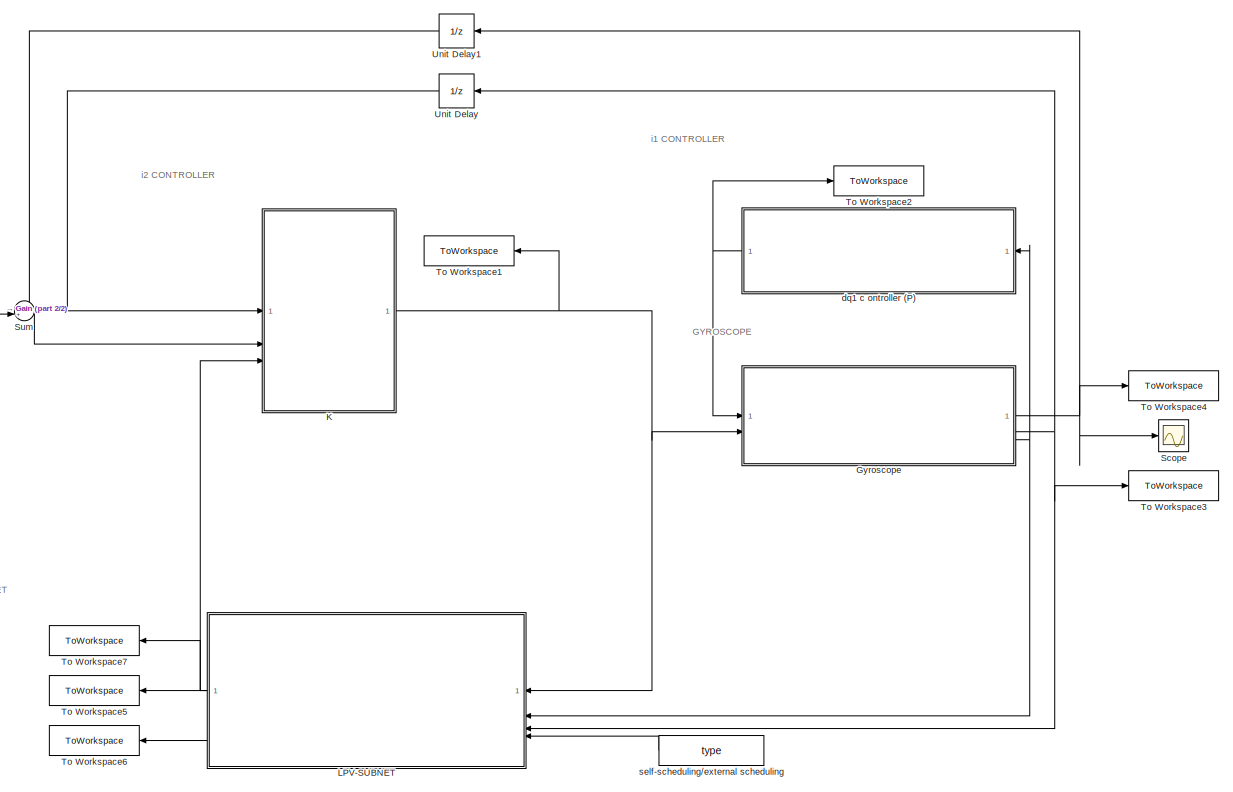
[diagram: root canvas - part 1/2, most of the canvas]
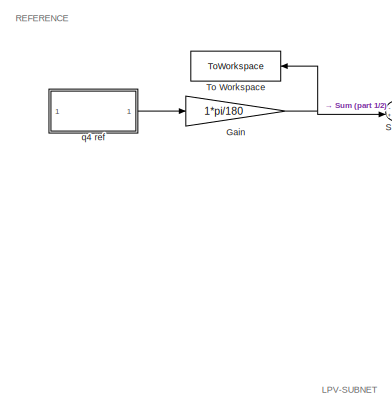
[diagram: root canvas - part 2/2, middle left region]
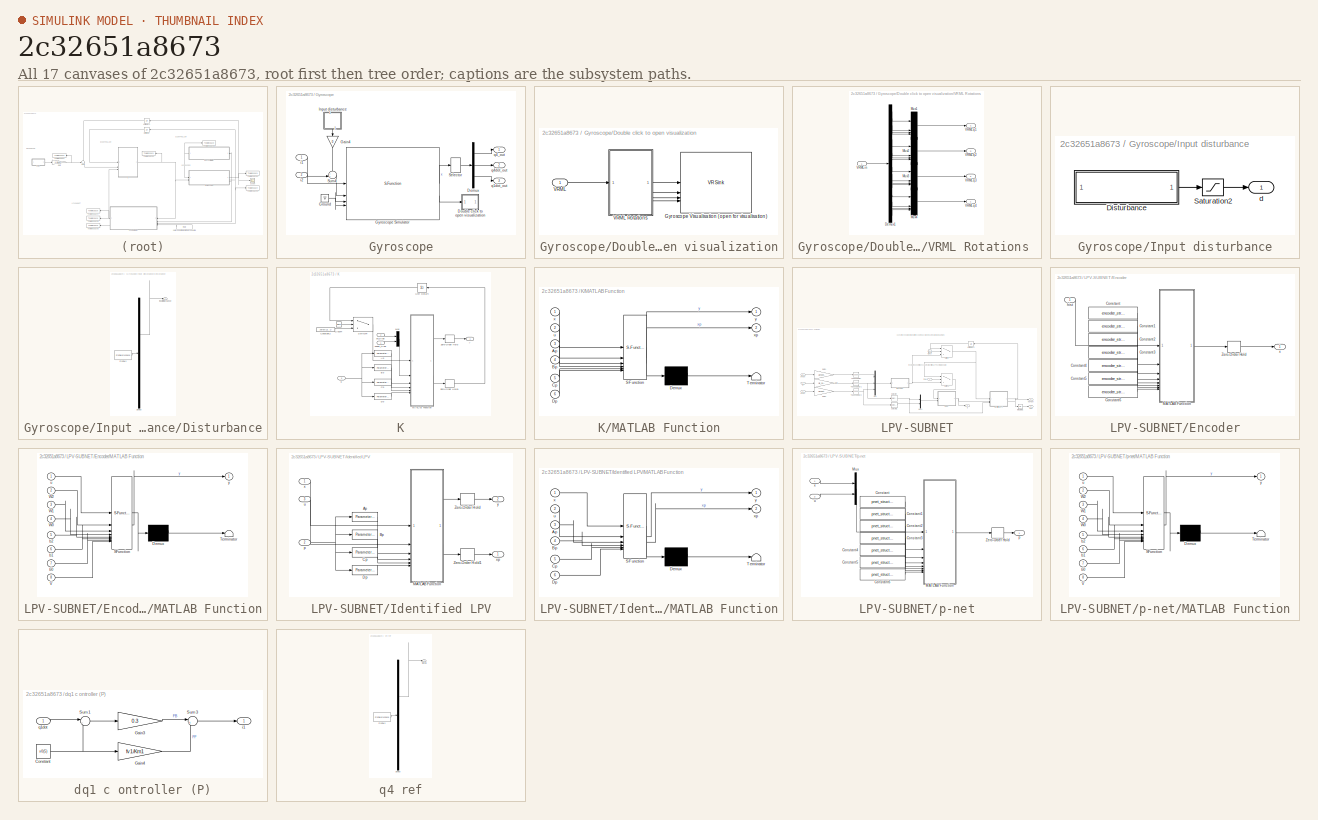
[diagram: thumbnail index - all 17 canvases of the model, root first then tree order]
MODEL slx_2c32651a8673
KIND model
CONFIG AbsTol = 1e-6
CONFIG EnableMultiTasking = off
CONFIG FixedStep = auto
CONFIG MaxStep = auto
CONFIG MinStep = auto
CONFIG RelTol = 1e-6
CONFIG SampleTimeConstraint = Unconstrained
CONFIG SolverName = VariableStepAuto
CONFIG StartTime = 0.0
CONFIG StopTime = 100
BLOCK [Gain] Gain
  Gain = 1*pi/180
BLOCK [SubSystem] Gyroscope
BLOCK [Demux] Gyroscope/Demux
  Outputs = 3
BLOCK [SubSystem] Gyroscope/Double click to open visualization
  Commented = on
  OpenFcn = open_system([strcat(gcb),'/Gyroscope Visualisation (open for visualisation)'],'OpenFcn')
BLOCK [Reference] Gyroscope/Double click to open visualization/Gyroscope Visualisation (open for visualisation)  REF=vrlib/VR Sink
  InstantiateOnLoad = on
  SourceBlock = vrlib/VR Sink
  SourceType = Virtual Reality Sink
BLOCK [Inport] Gyroscope/Double click to open visualization/VRML
BLOCK [SubSystem] Gyroscope/Double click to open visualization/VRML Rotations 
BLOCK [Demux] Gyroscope/Double click to open visualization/VRML Rotations /Demux1
  Outputs = 16
BLOCK [Mux] Gyroscope/Double click to open visualization/VRML Rotations /Mux1
  DisplayOption = bar
BLOCK [Mux] Gyroscope/Double click to open visualization/VRML Rotations /Mux2
  DisplayOption = bar
BLOCK [Mux] Gyroscope/Double click to open visualization/VRML Rotations /Mux3
  DisplayOption = bar
BLOCK [Mux] Gyroscope/Double click to open visualization/VRML Rotations /Mux4
  DisplayOption = bar
BLOCK [Inport] Gyroscope/Double click to open visualization/VRML Rotations /VRMLin
BLOCK [Outport] Gyroscope/Double click to open visualization/VRML Rotations /VRMLq1
  Port = 4
BLOCK [Outport] Gyroscope/Double click to open visualization/VRML Rotations /VRMLq2
  Port = 3
BLOCK [Outport] Gyroscope/Double click to open visualization/VRML Rotations /VRMLq3
  Port = 2
BLOCK [Outport] Gyroscope/Double click to open visualization/VRML Rotations /VRMLq4
BLOCK [Gain] Gyroscope/Gain4
  Gain = 0
  NameLocation = left
BLOCK [Ground] Gyroscope/Ground
BLOCK [S-Function] Gyroscope/Gyroscope Simulator
  EnableBusSupport = off
  FunctionName = gyro_simulation
  Parameters = x0,f,w1l,q2l,q3l,q4l,inertia,Km
  SFcnIsStateOwnerBlock = off
  SFunctionDeploymentMode = off
BLOCK [SubSystem] Gyroscope/Input disturbance
  NameLocation = left
BLOCK [SubSystem] Gyroscope/Input disturbance/Disturbance
  ClipboardFcn = sigbuilder_block('clipboard');
  CloseFcn = sigbuilder_block('close');
  ContinueFcn = sigbuilder_block('continue');
  CopyFcn = sigbuilder_block('copy');
  DeleteFcn = sigbuilder_block('delete');
  LoadFcn = sigbuilder_block('load');
  MaskHideContents = on
  ModelCloseFcn = sigbuilder_block('modelClose');
  NameChangeFcn = sigbuilder_block('namechange');
  OpenFcn = sigbuilder_block('open',[517.5 223.5 557.25 363 ]);
  PauseFcn = sigbuilder_block('pause');
  PreSaveFcn = sigbuilder_block('preSave');
  StartFcn = sigbuilder_block('start');
  StopFcn = sigbuilder_block('stop');
  Tag = STV Subsys
BLOCK [Demux] Gyroscope/Input disturbance/Disturbance/Demux
  DisplayOption = none
  Outputs = 1
  Tag = STV Demux
BLOCK [FromWorkspace] Gyroscope/Input disturbance/Disturbance/FromWs
  Tag = STV FromWs
  VariableName = tuvar
BLOCK [Outport] Gyroscope/Input disturbance/Disturbance/InputDisturbance
  Tag = STV Outport
BLOCK [Saturate] Gyroscope/Input disturbance/Saturation2
  LowerLimit = -0.1
  UpperLimit = 0.1
BLOCK [Outport] Gyroscope/Input disturbance/d
BLOCK [Selector] Gyroscope/Selector
  IndexOptions = Index vector (dialog)
  Indices = [4 8 5]
  InputPortWidth = 8
  OutputSizes = 1
BLOCK [Sum] Gyroscope/Sum4
  Inputs = ++|
BLOCK [Inport] Gyroscope/i1
BLOCK [Inport] Gyroscope/i2
  Port = 2
BLOCK [Outport] Gyroscope/q1dot_out
  Port = 3
BLOCK [Outport] Gyroscope/q4_out
BLOCK [Outport] Gyroscope/q4dot_out
  Port = 2
BLOCK [SubSystem] K
BLOCK [Reference] K/Ap  REF=lpvcoreLibraryCore/Parameter-Varying
Matrix
  SourceBlock = lpvcoreLibraryCore/Parameter-Varying\nMatrix
  SourceProductName = LPVcore
  SourceType = Parameter-Varying Matrix
BLOCK [Reference] K/Bp  REF=lpvcoreLibraryCore/Parameter-Varying
Matrix
  SourceBlock = lpvcoreLibraryCore/Parameter-Varying\nMatrix
  SourceProductName = LPVcore
  SourceType = Parameter-Varying Matrix
BLOCK [Clock] K/Clock4
BLOCK [Constant] K/Constant2
  Value = zeros(13, 1)
BLOCK [Reference] K/Cp  REF=lpvcoreLibraryCore/Parameter-Varying
Matrix
  SourceBlock = lpvcoreLibraryCore/Parameter-Varying\nMatrix
  SourceProductName = LPVcore
  SourceType = Parameter-Varying Matrix
BLOCK [Reference] K/Dp  REF=lpvcoreLibraryCore/Parameter-Varying
Matrix
  SourceBlock = lpvcoreLibraryCore/Parameter-Varying\nMatrix
  SourceProductName = LPVcore
  SourceType = Parameter-Varying Matrix
BLOCK [SubSystem] K/MATLAB Function
  ErrorFcn = Stateflow.Translate.translate
  PermitHierarchicalResolution = ExplicitOnly
  SFBlockType = MATLAB Function
  TreatAsAtomicUnit = on
BLOCK [Demux] K/MATLAB Function/ Demux 
  Outputs = 1
BLOCK [S-Function] K/MATLAB Function/ SFunction 
  EnableBusSupport = on
  FunctionName = sf_sfun
  PortCounts = [6 3]
  SFcnIsStateOwnerBlock = off
  SFunctionDeploymentMode = off
  Tag = Stateflow S-Function 5
BLOCK [Terminator] K/MATLAB Function/ Terminator 
BLOCK [Inport] K/MATLAB Function/Ap
  Port = 3
BLOCK [Inport] K/MATLAB Function/Bp
  Port = 4
BLOCK [Inport] K/MATLAB Function/Cp
  Port = 5
BLOCK [Inport] K/MATLAB Function/Dp
  Port = 6
BLOCK [Inport] K/MATLAB Function/u
  Port = 2
BLOCK [Inport] K/MATLAB Function/x
BLOCK [Outport] K/MATLAB Function/xp
  Port = 2
BLOCK [Outport] K/MATLAB Function/y
BLOCK [Mux] K/Mux
  DisplayOption = bar
  Inputs = 2
BLOCK [Switch] K/Switch4
  Criteria = u2 > Threshold
  InputSameDT = off
  SaturateOnIntegerOverflow = off
  Threshold = Ts
BLOCK [UnitDelay] K/Unit Delay4
  HasFrameUpgradeWarning = on
  NameLocation = top
  SampleTime = Ts
BLOCK [ZeroOrderHold] K/Zero-Order Hold
  SampleTime = Ts
BLOCK [ZeroOrderHold] K/Zero-Order Hold1
  SampleTime = Ts
BLOCK [Inport] K/p
  Port = 3
BLOCK [Inport] K/q4_tilde
  Port = 2
BLOCK [Inport] K/q4dot_tilde
BLOCK [Outport] K/y
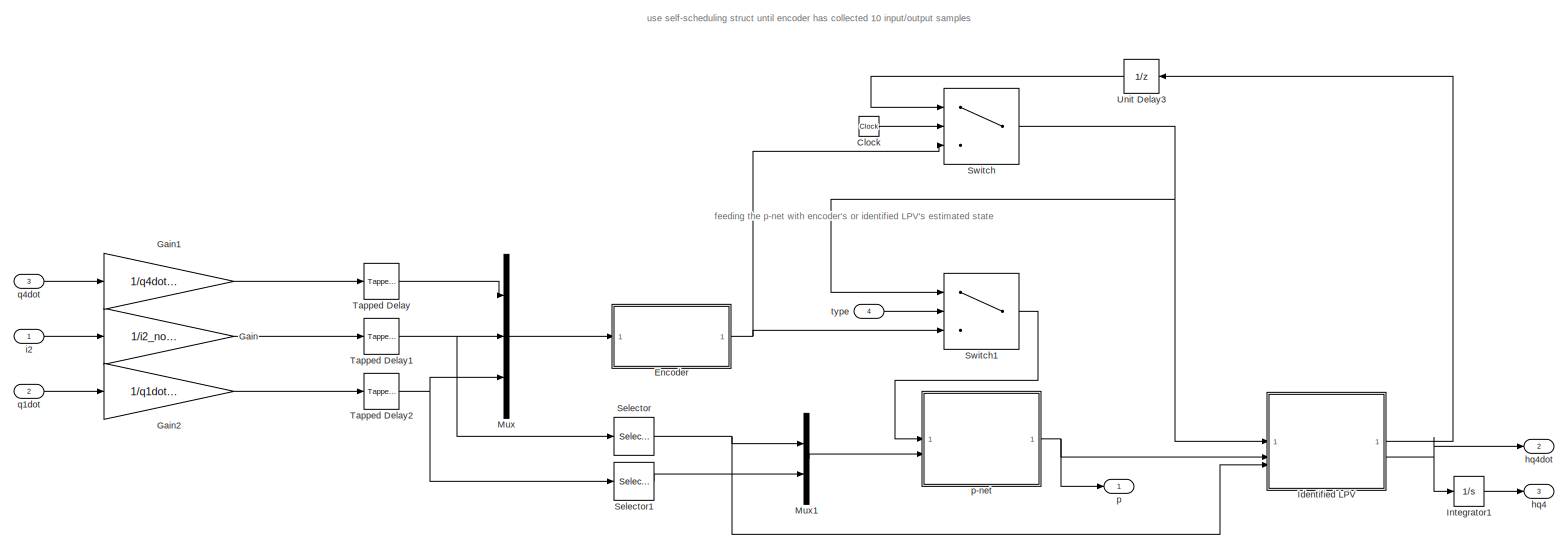
[diagram: LPV-SUBNET - part 1/1, most of the canvas]
BLOCK [SubSystem] LPV-SUBNET
  NameLocation = top
BLOCK [Clock] LPV-SUBNET/Clock
BLOCK [SubSystem] LPV-SUBNET/Encoder
BLOCK [Constant] LPV-SUBNET/Encoder/Constant
  Value = encoder_struct.W2
BLOCK [Constant] LPV-SUBNET/Encoder/Constant1
  Value = encoder_struct.W1
BLOCK [Constant] LPV-SUBNET/Encoder/Constant2
  Value = encoder_struct.W0
BLOCK [Constant] LPV-SUBNET/Encoder/Constant3
  Value = encoder_struct.b2
BLOCK [Constant] LPV-SUBNET/Encoder/Constant4
  Value = encoder_struct.b1
BLOCK [Constant] LPV-SUBNET/Encoder/Constant5
  Value = encoder_struct.b0
BLOCK [Constant] LPV-SUBNET/Encoder/Constant6
  Value = encoder_struct.V
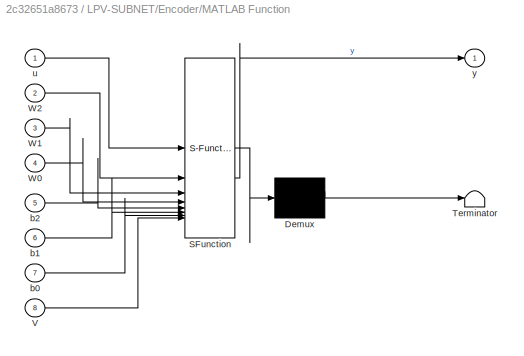
BLOCK [SubSystem] LPV-SUBNET/Encoder/MATLAB Function
  ErrorFcn = Stateflow.Translate.translate
  PermitHierarchicalResolution = ExplicitOnly
  SFBlockType = MATLAB Function
  TreatAsAtomicUnit = on
BLOCK [Demux] LPV-SUBNET/Encoder/MATLAB Function/ Demux 
  Outputs = 1
BLOCK [S-Function] LPV-SUBNET/Encoder/MATLAB Function/ SFunction 
  EnableBusSupport = on
  FunctionName = sf_sfun
  PortCounts = [8 2]
  SFcnIsStateOwnerBlock = off
  SFunctionDeploymentMode = off
  Tag = Stateflow S-Function 2
BLOCK [Terminator] LPV-SUBNET/Encoder/MATLAB Function/ Terminator 
BLOCK [Inport] LPV-SUBNET/Encoder/MATLAB Function/V
  Port = 8
BLOCK [Inport] LPV-SUBNET/Encoder/MATLAB Function/W0
  Port = 4
BLOCK [Inport] LPV-SUBNET/Encoder/MATLAB Function/W1
  Port = 3
BLOCK [Inport] LPV-SUBNET/Encoder/MATLAB Function/W2
  Port = 2
BLOCK [Inport] LPV-SUBNET/Encoder/MATLAB Function/b0
  Port = 7
BLOCK [Inport] LPV-SUBNET/Encoder/MATLAB Function/b1
  Port = 6
BLOCK [Inport] LPV-SUBNET/Encoder/MATLAB Function/b2
  Port = 5
BLOCK [Inport] LPV-SUBNET/Encoder/MATLAB Function/u
BLOCK [Outport] LPV-SUBNET/Encoder/MATLAB Function/y
BLOCK [ZeroOrderHold] LPV-SUBNET/Encoder/Zero-Order Hold
  SampleTime = Ts
BLOCK [Inport] LPV-SUBNET/Encoder/hist
BLOCK [Outport] LPV-SUBNET/Encoder/x
BLOCK [Gain] LPV-SUBNET/Gain
  Gain = 1/i2_norm_coeff
BLOCK [Gain] LPV-SUBNET/Gain1
  Gain = 1/q4dot_norm_coeff
BLOCK [Gain] LPV-SUBNET/Gain2
  Gain = 1/q1dot_norm_coeff
BLOCK [SubSystem] LPV-SUBNET/Identified LPV
BLOCK [Reference] LPV-SUBNET/Identified LPV/Ap  REF=lpvcoreLibraryCore/Parameter-Varying
Matrix
  SourceBlock = lpvcoreLibraryCore/Parameter-Varying\nMatrix
  SourceProductName = LPVcore
  SourceType = Parameter-Varying Matrix
BLOCK [Reference] LPV-SUBNET/Identified LPV/Bp  REF=lpvcoreLibraryCore/Parameter-Varying
Matrix
  SourceBlock = lpvcoreLibraryCore/Parameter-Varying\nMatrix
  SourceProductName = LPVcore
  SourceType = Parameter-Varying Matrix
BLOCK [Reference] LPV-SUBNET/Identified LPV/Cp  REF=lpvcoreLibraryCore/Parameter-Varying
Matrix
  SourceBlock = lpvcoreLibraryCore/Parameter-Varying\nMatrix
  SourceProductName = LPVcore
  SourceType = Parameter-Varying Matrix
BLOCK [Reference] LPV-SUBNET/Identified LPV/Dp  REF=lpvcoreLibraryCore/Parameter-Varying
Matrix
  SourceBlock = lpvcoreLibraryCore/Parameter-Varying\nMatrix
  SourceProductName = LPVcore
  SourceType = Parameter-Varying Matrix
BLOCK [SubSystem] LPV-SUBNET/Identified LPV/MATLAB Function
  ErrorFcn = Stateflow.Translate.translate
  PermitHierarchicalResolution = ExplicitOnly
  SFBlockType = MATLAB Function
  TreatAsAtomicUnit = on
BLOCK [Demux] LPV-SUBNET/Identified LPV/MATLAB Function/ Demux 
  Outputs = 1
BLOCK [S-Function] LPV-SUBNET/Identified LPV/MATLAB Function/ SFunction 
  EnableBusSupport = on
  FunctionName = sf_sfun
  PortCounts = [6 3]
  SFcnIsStateOwnerBlock = off
  SFunctionDeploymentMode = off
  Tag = Stateflow S-Function 3
BLOCK [Terminator] LPV-SUBNET/Identified LPV/MATLAB Function/ Terminator 
BLOCK [Inport] LPV-SUBNET/Identified LPV/MATLAB Function/Ap
  Port = 3
BLOCK [Inport] LPV-SUBNET/Identified LPV/MATLAB Function/Bp
  Port = 4
BLOCK [Inport] LPV-SUBNET/Identified LPV/MATLAB Function/Cp
  Port = 5
BLOCK [Inport] LPV-SUBNET/Identified LPV/MATLAB Function/Dp
  Port = 6
BLOCK [Inport] LPV-SUBNET/Identified LPV/MATLAB Function/u
  Port = 2
BLOCK [Inport] LPV-SUBNET/Identified LPV/MATLAB Function/x
BLOCK [Outport] LPV-SUBNET/Identified LPV/MATLAB Function/xp
  Port = 2
BLOCK [Outport] LPV-SUBNET/Identified LPV/MATLAB Function/y
BLOCK [ZeroOrderHold] LPV-SUBNET/Identified LPV/Zero-Order Hold
  SampleTime = Ts
BLOCK [ZeroOrderHold] LPV-SUBNET/Identified LPV/Zero-Order Hold1
  SampleTime = Ts
BLOCK [Inport] LPV-SUBNET/Identified LPV/p
  Port = 2
BLOCK [Inport] LPV-SUBNET/Identified LPV/u
  Port = 3
BLOCK [Inport] LPV-SUBNET/Identified LPV/x
BLOCK [Outport] LPV-SUBNET/Identified LPV/xp
BLOCK [Outport] LPV-SUBNET/Identified LPV/y
  Port = 2
BLOCK [Integrator] LPV-SUBNET/Integrator1
BLOCK [Mux] LPV-SUBNET/Mux
  DisplayOption = bar
  Inputs = 3
BLOCK [Mux] LPV-SUBNET/Mux1
  DisplayOption = bar
  Inputs = 2
BLOCK [Selector] LPV-SUBNET/Selector
  IndexOptions = Index vector (dialog)
  Indices = 1
  InputPortWidth = 10
  OutputSizes = 1
BLOCK [Selector] LPV-SUBNET/Selector1
  IndexOptions = Index vector (dialog)
  Indices = 1
  InputPortWidth = 10
  OutputSizes = 1
BLOCK [Switch] LPV-SUBNET/Switch
  Criteria = u2 > Threshold
  InputSameDT = off
  SaturateOnIntegerOverflow = off
  Threshold = Ts * 10
BLOCK [Switch] LPV-SUBNET/Switch1
  Criteria = u2 ~= 0
  InputSameDT = off
  SaturateOnIntegerOverflow = off
  Threshold = Ts * 10
BLOCK [Reference] LPV-SUBNET/Tapped Delay  REF=simulink/Discrete/Tapped Delay
  SourceBlock = simulink/Discrete/Tapped Delay
  SourceType = Tapped Delay Line
BLOCK [Reference] LPV-SUBNET/Tapped Delay1  REF=simulink/Discrete/Tapped Delay
  SourceBlock = simulink/Discrete/Tapped Delay
  SourceType = Tapped Delay Line
BLOCK [Reference] LPV-SUBNET/Tapped Delay2  REF=simulink/Discrete/Tapped Delay
  SourceBlock = simulink/Discrete/Tapped Delay
  SourceType = Tapped Delay Line
BLOCK [UnitDelay] LPV-SUBNET/Unit Delay3
  HasFrameUpgradeWarning = on
  NameLocation = top
  SampleTime = Ts
BLOCK [Outport] LPV-SUBNET/hq4
  Port = 3
BLOCK [Outport] LPV-SUBNET/hq4dot
  Port = 2
BLOCK [Inport] LPV-SUBNET/i2
BLOCK [Outport] LPV-SUBNET/p
BLOCK [SubSystem] LPV-SUBNET/p-net
BLOCK [Constant] LPV-SUBNET/p-net/Constant
  Value = pnet_struct.W2
BLOCK [Constant] LPV-SUBNET/p-net/Constant1
  Value = pnet_struct.W1
BLOCK [Constant] LPV-SUBNET/p-net/Constant2
  Value = pnet_struct.W0
BLOCK [Constant] LPV-SUBNET/p-net/Constant3
  Value = pnet_struct.b2
BLOCK [Constant] LPV-SUBNET/p-net/Constant4
  Value = pnet_struct.b1
BLOCK [Constant] LPV-SUBNET/p-net/Constant5
  Value = pnet_struct.b0
BLOCK [Constant] LPV-SUBNET/p-net/Constant6
  Value = pnet_struct.V
BLOCK [SubSystem] LPV-SUBNET/p-net/MATLAB Function
  ErrorFcn = Stateflow.Translate.translate
  PermitHierarchicalResolution = ExplicitOnly
  SFBlockType = MATLAB Function
  TreatAsAtomicUnit = on
BLOCK [Demux] LPV-SUBNET/p-net/MATLAB Function/ Demux 
  Outputs = 1
BLOCK [S-Function] LPV-SUBNET/p-net/MATLAB Function/ SFunction 
  EnableBusSupport = on
  FunctionName = sf_sfun
  PortCounts = [8 2]
  SFcnIsStateOwnerBlock = off
  SFunctionDeploymentMode = off
  Tag = Stateflow S-Function 1
BLOCK [Terminator] LPV-SUBNET/p-net/MATLAB Function/ Terminator 
BLOCK [Inport] LPV-SUBNET/p-net/MATLAB Function/V
  Port = 8
BLOCK [Inport] LPV-SUBNET/p-net/MATLAB Function/W0
  Port = 4
BLOCK [Inport] LPV-SUBNET/p-net/MATLAB Function/W1
  Port = 3
BLOCK [Inport] LPV-SUBNET/p-net/MATLAB Function/W2
  Port = 2
BLOCK [Inport] LPV-SUBNET/p-net/MATLAB Function/b0
  Port = 7
BLOCK [Inport] LPV-SUBNET/p-net/MATLAB Function/b1
  Port = 6
BLOCK [Inport] LPV-SUBNET/p-net/MATLAB Function/b2
  Port = 5
BLOCK [Inport] LPV-SUBNET/p-net/MATLAB Function/u
BLOCK [Outport] LPV-SUBNET/p-net/MATLAB Function/y
BLOCK [Mux] LPV-SUBNET/p-net/Mux
  DisplayOption = bar
  Inputs = 2
BLOCK [ZeroOrderHold] LPV-SUBNET/p-net/Zero-Order Hold
  SampleTime = Ts
BLOCK [Outport] LPV-SUBNET/p-net/p
BLOCK [Inport] LPV-SUBNET/p-net/u
  Port = 2
BLOCK [Inport] LPV-SUBNET/p-net/x
BLOCK [Inport] LPV-SUBNET/q1dot
  Port = 2
BLOCK [Inport] LPV-SUBNET/q4dot
  Port = 3
BLOCK [Inport] LPV-SUBNET/type
  Port = 4
BLOCK [Scope] Scope
  Floating = off
  NumInputPorts = 1
  ScopeSpecificationString = Simulink.scopes.TimeScopeBlockCfg('CurrentConfiguration', extmgr.ConfigurationSet(extmgr.Configuration('Core','General UI',true),extmgr.Configuration('Core','Source UI',true),extmgr.Configuration('Sources','WiredSimulink',true),extmgr.Configuration('Visuals','Time Domain',true,'SerializedDisplays',{struct('MinYLimReal','-1.24522','MaxYLimReal','1.00442','YLabelReal','','MinYLimMag','0.00000','MaxY...<+1375ch>
BLOCK [Sum] Sum
  Inputs = -+|
BLOCK [ToWorkspace] To Workspace
  FixptAsFi = on
  MaxDataPoints = inf
  NameLocation = top
  SampleTime = -1
  SaveFormat = Timeseries
  VariableName = q4ref
BLOCK [ToWorkspace] To Workspace1
  FixptAsFi = on
  MaxDataPoints = inf
  NameLocation = top
  SampleTime = -1
  SaveFormat = Timeseries
  VariableName = i2
BLOCK [ToWorkspace] To Workspace2
  FixptAsFi = on
  MaxDataPoints = inf
  SampleTime = -1
  SaveFormat = Timeseries
  VariableName = i1
BLOCK [ToWorkspace] To Workspace3
  FixptAsFi = on
  MaxDataPoints = inf
  SampleTime = -1
  SaveFormat = Timeseries
  VariableName = q4dot
BLOCK [ToWorkspace] To Workspace4
  FixptAsFi = on
  MaxDataPoints = inf
  SampleTime = -1
  SaveFormat = Timeseries
  VariableName = q4
BLOCK [ToWorkspace] To Workspace5
  FixptAsFi = on
  MaxDataPoints = inf
  NameLocation = top
  SampleTime = -1
  SaveFormat = Timeseries
  VariableName = hq4dot
BLOCK [ToWorkspace] To Workspace6
  FixptAsFi = on
  MaxDataPoints = inf
  NameLocation = top
  SampleTime = -1
  SaveFormat = Timeseries
  VariableName = hq4
BLOCK [ToWorkspace] To Workspace7
  FixptAsFi = on
  MaxDataPoints = inf
  NameLocation = top
  SampleTime = -1
  SaveFormat = Timeseries
  VariableName = p
BLOCK [UnitDelay] Unit Delay
  HasFrameUpgradeWarning = on
  NameLocation = top
  SampleTime = Ts
BLOCK [UnitDelay] Unit Delay1
  HasFrameUpgradeWarning = on
  NameLocation = top
  SampleTime = Ts
BLOCK [SubSystem] dq1 c ontroller (P)
BLOCK [Constant] dq1 c ontroller (P)/Constant
  Value = x0(5)
BLOCK [Gain] dq1 c ontroller (P)/Gain3
  Gain = 0.3
BLOCK [Gain] dq1 c ontroller (P)/Gain4
  Gain = fv1/Km1
BLOCK [Sum] dq1 c ontroller (P)/Sum1
  Inputs = |-+
BLOCK [Sum] dq1 c ontroller (P)/Sum3
  Inputs = |++
  NameLocation = top
BLOCK [Outport] dq1 c ontroller (P)/i1
BLOCK [Inport] dq1 c ontroller (P)/q1dot
BLOCK [SubSystem] q4 ref
  ClipboardFcn = sigbuilder_block('clipboard');
  CloseFcn = sigbuilder_block('close');
  ContinueFcn = sigbuilder_block('continue');
  CopyFcn = sigbuilder_block('copy');
  DeleteFcn = sigbuilder_block('delete');
  LoadFcn = sigbuilder_block('load');
  MaskHideContents = on
  ModelCloseFcn = sigbuilder_block('modelClose');
  NameChangeFcn = sigbuilder_block('namechange');
  OpenFcn = sigbuilder_block('open',[517.5 223.5 557.25 363 ]);
  PauseFcn = sigbuilder_block('pause');
  PreSaveFcn = sigbuilder_block('preSave');
  StartFcn = sigbuilder_block('start');
  StopFcn = sigbuilder_block('stop');
  Tag = STV Subsys
BLOCK [Demux] q4 ref/Demux
  DisplayOption = none
  Outputs = 1
  Tag = STV Demux
BLOCK [FromWorkspace] q4 ref/FromWs
  Tag = STV FromWs
  VariableName = tuvar
BLOCK [Outport] q4 ref/Signal 1
  Tag = STV Outport
BLOCK [Constant] self-scheduling//external scheduling
  Value = type
ANNOTATION (root): GYROSCOPE
ANNOTATION (root): LPV-SUBNET
ANNOTATION (root): REFERENCE
ANNOTATION (root): i1 CONTROLLER
ANNOTATION (root): i2 CONTROLLER
ANNOTATION LPV-SUBNET: feeding the p-net with encoder's or identified LPV's estimated state
ANNOTATION LPV-SUBNET: use self-scheduling struct until encoder has collected 10 input/output samples
NET Gain:1 -> Sum:2, To Workspace:1
LINE Gyroscope/Demux:1 -> Gyroscope/q4_out:1
LINE Gyroscope/Demux:2 -> Gyroscope/q4dot_out:1
LINE Gyroscope/Demux:3 -> Gyroscope/q1dot_out:1
LINE Gyroscope/Double click to open visualization/VRML Rotations /Demux1:1 -> Gyroscope/Double click to open visualization/VRML Rotations /Mux1:1
LINE Gyroscope/Double click to open visualization/VRML Rotations /Demux1:10 -> Gyroscope/Double click to open visualization/VRML Rotations /Mux3:2
LINE Gyroscope/Double click to open visualization/VRML Rotations /Demux1:11 -> Gyroscope/Double click to open visualization/VRML Rotations /Mux3:3
LINE Gyroscope/Double click to open visualization/VRML Rotations /Demux1:12 -> Gyroscope/Double click to open visualization/VRML Rotations /Mux3:4
LINE Gyroscope/Double click to open visualization/VRML Rotations /Demux1:13 -> Gyroscope/Double click to open visualization/VRML Rotations /Mux4:1
LINE Gyroscope/Double click to open visualization/VRML Rotations /Demux1:14 -> Gyroscope/Double click to open visualization/VRML Rotations /Mux4:2
LINE Gyroscope/Double click to open visualization/VRML Rotations /Demux1:15 -> Gyroscope/Double click to open visualization/VRML Rotations /Mux4:3
LINE Gyroscope/Double click to open visualization/VRML Rotations /Demux1:16 -> Gyroscope/Double click to open visualization/VRML Rotations /Mux4:4
LINE Gyroscope/Double click to open visualization/VRML Rotations /Demux1:2 -> Gyroscope/Double click to open visualization/VRML Rotations /Mux1:2
LINE Gyroscope/Double click to open visualization/VRML Rotations /Demux1:3 -> Gyroscope/Double click to open visualization/VRML Rotations /Mux1:3
LINE Gyroscope/Double click to open visualization/VRML Rotations /Demux1:4 -> Gyroscope/Double click to open visualization/VRML Rotations /Mux1:4
LINE Gyroscope/Double click to open visualization/VRML Rotations /Demux1:5 -> Gyroscope/Double click to open visualization/VRML Rotations /Mux2:1
LINE Gyroscope/Double click to open visualization/VRML Rotations /Demux1:6 -> Gyroscope/Double click to open visualization/VRML Rotations /Mux2:2
LINE Gyroscope/Double click to open visualization/VRML Rotations /Demux1:7 -> Gyroscope/Double click to open visualization/VRML Rotations /Mux2:3
LINE Gyroscope/Double click to open visualization/VRML Rotations /Demux1:8 -> Gyroscope/Double click to open visualization/VRML Rotations /Mux2:4
LINE Gyroscope/Double click to open visualization/VRML Rotations /Demux1:9 -> Gyroscope/Double click to open visualization/VRML Rotations /Mux3:1
LINE Gyroscope/Double click to open visualization/VRML Rotations /Mux1:1 -> Gyroscope/Double click to open visualization/VRML Rotations /VRMLq1:1
LINE Gyroscope/Double click to open visualization/VRML Rotations /Mux2:1 -> Gyroscope/Double click to open visualization/VRML Rotations /VRMLq2:1
LINE Gyroscope/Double click to open visualization/VRML Rotations /Mux3:1 -> Gyroscope/Double click to open visualization/VRML Rotations /VRMLq3:1
LINE Gyroscope/Double click to open visualization/VRML Rotations /Mux4:1 -> Gyroscope/Double click to open visualization/VRML Rotations /VRMLq4:1
LINE Gyroscope/Double click to open visualization/VRML Rotations /VRMLin:1 -> Gyroscope/Double click to open visualization/VRML Rotations /Demux1:1
LINE Gyroscope/Double click to open visualization/VRML Rotations :1 -> Gyroscope/Double click to open visualization/Gyroscope Visualisation (open for visualisation):1
LINE Gyroscope/Double click to open visualization/VRML Rotations :2 -> Gyroscope/Double click to open visualization/Gyroscope Visualisation (open for visualisation):2
LINE Gyroscope/Double click to open visualization/VRML Rotations :3 -> Gyroscope/Double click to open visualization/Gyroscope Visualisation (open for visualisation):3
LINE Gyroscope/Double click to open visualization/VRML Rotations :4 -> Gyroscope/Double click to open visualization/Gyroscope Visualisation (open for visualisation):4
LINE Gyroscope/Double click to open visualization/VRML:1 -> Gyroscope/Double click to open visualization/VRML Rotations :1
LINE Gyroscope/Gain4:1 -> Gyroscope/Sum4:1
NET Gyroscope/Ground:1 -> Gyroscope/Gyroscope Simulator:3, Gyroscope/Gyroscope Simulator:4
LINE Gyroscope/Gyroscope Simulator:1 -> Gyroscope/Selector:1
LINE Gyroscope/Gyroscope Simulator:2 -> Gyroscope/Double click to open visualization:1
LINE Gyroscope/Input disturbance/Disturbance:1 -> Gyroscope/Input disturbance/Saturation2:1
LINE Gyroscope/Input disturbance/Saturation2:1 -> Gyroscope/Input disturbance/d:1
LINE Gyroscope/Input disturbance:1 -> Gyroscope/Gain4:1
LINE Gyroscope/Selector:1 -> Gyroscope/Demux:1
LINE Gyroscope/Sum4:1 -> Gyroscope/Gyroscope Simulator:2
LINE Gyroscope/i1:1 -> Gyroscope/Gyroscope Simulator:1
LINE Gyroscope/i2:1 -> Gyroscope/Sum4:2
NET Gyroscope:1 -> Scope:1, To Workspace4:1, Unit Delay1:1
NET Gyroscope:2 -> LPV-SUBNET:3, To Workspace3:1, Unit Delay:1
NET Gyroscope:3 -> LPV-SUBNET:2, dq1 c ontroller (P):1
LINE K/Ap:1 -> K/MATLAB Function:3
LINE K/Bp:1 -> K/MATLAB Function:4
LINE K/Clock4:1 -> K/Switch4:2
LINE K/Constant2:1 -> K/Switch4:3
LINE K/Cp:1 -> K/MATLAB Function:5
LINE K/Dp:1 -> K/MATLAB Function:6
LINE K/MATLAB Function:1 -> K/Zero-Order Hold:1
LINE K/MATLAB Function:2 -> K/Zero-Order Hold1:1
LINE K/Mux:1 -> K/MATLAB Function:2
LINE K/Switch4:1 -> K/MATLAB Function:1
LINE K/Unit Delay4:1 -> K/Switch4:1
LINE K/Zero-Order Hold1:1 -> K/Unit Delay4:1
LINE K/Zero-Order Hold:1 -> K/y:1
NET K/p:1 -> K/Ap:1, K/Bp:1, K/Cp:1, K/Dp:1
LINE K/q4_tilde:1 -> K/Mux:1
LINE K/q4dot_tilde:1 -> K/Mux:2
NET K:1 -> Gyroscope:2, LPV-SUBNET:1, To Workspace1:1
LINE LPV-SUBNET/Clock:1 -> LPV-SUBNET/Switch:2
LINE LPV-SUBNET/Encoder/Constant1:1 -> LPV-SUBNET/Encoder/MATLAB Function:3
LINE LPV-SUBNET/Encoder/Constant2:1 -> LPV-SUBNET/Encoder/MATLAB Function:4
LINE LPV-SUBNET/Encoder/Constant3:1 -> LPV-SUBNET/Encoder/MATLAB Function:5
LINE LPV-SUBNET/Encoder/Constant4:1 -> LPV-SUBNET/Encoder/MATLAB Function:6
LINE LPV-SUBNET/Encoder/Constant5:1 -> LPV-SUBNET/Encoder/MATLAB Function:7
LINE LPV-SUBNET/Encoder/Constant6:1 -> LPV-SUBNET/Encoder/MATLAB Function:8
LINE LPV-SUBNET/Encoder/Constant:1 -> LPV-SUBNET/Encoder/MATLAB Function:2
LINE LPV-SUBNET/Encoder/MATLAB Function:1 -> LPV-SUBNET/Encoder/Zero-Order Hold:1
LINE LPV-SUBNET/Encoder/Zero-Order Hold:1 -> LPV-SUBNET/Encoder/x:1
LINE LPV-SUBNET/Encoder/hist:1 -> LPV-SUBNET/Encoder/MATLAB Function:1
NET LPV-SUBNET/Encoder:1 -> LPV-SUBNET/Switch1:3, LPV-SUBNET/Switch:3
LINE LPV-SUBNET/Gain1:1 -> LPV-SUBNET/Tapped Delay:1
LINE LPV-SUBNET/Gain2:1 -> LPV-SUBNET/Tapped Delay2:1
LINE LPV-SUBNET/Gain:1 -> LPV-SUBNET/Tapped Delay1:1
LINE LPV-SUBNET/Identified LPV/Ap:1 -> LPV-SUBNET/Identified LPV/MATLAB Function:3
LINE LPV-SUBNET/Identified LPV/Bp:1 -> LPV-SUBNET/Identified LPV/MATLAB Function:4
LINE LPV-SUBNET/Identified LPV/Cp:1 -> LPV-SUBNET/Identified LPV/MATLAB Function:5
LINE LPV-SUBNET/Identified LPV/Dp:1 -> LPV-SUBNET/Identified LPV/MATLAB Function:6
LINE LPV-SUBNET/Identified LPV/MATLAB Function:1 -> LPV-SUBNET/Identified LPV/Zero-Order Hold:1
LINE LPV-SUBNET/Identified LPV/MATLAB Function:2 -> LPV-SUBNET/Identified LPV/Zero-Order Hold1:1
LINE LPV-SUBNET/Identified LPV/Zero-Order Hold1:1 -> LPV-SUBNET/Identified LPV/xp:1
LINE LPV-SUBNET/Identified LPV/Zero-Order Hold:1 -> LPV-SUBNET/Identified LPV/y:1
NET LPV-SUBNET/Identified LPV/p:1 -> LPV-SUBNET/Identified LPV/Ap:1, LPV-SUBNET/Identified LPV/Bp:1, LPV-SUBNET/Identified LPV/Cp:1, LPV-SUBNET/Identified LPV/Dp:1
LINE LPV-SUBNET/Identified LPV/u:1 -> LPV-SUBNET/Identified LPV/MATLAB Function:2
LINE LPV-SUBNET/Identified LPV/x:1 -> LPV-SUBNET/Identified LPV/MATLAB Function:1
LINE LPV-SUBNET/Identified LPV:1 -> LPV-SUBNET/Unit Delay3:1
NET LPV-SUBNET/Identified LPV:2 -> LPV-SUBNET/Integrator1:1, LPV-SUBNET/hq4dot:1
LINE LPV-SUBNET/Integrator1:1 -> LPV-SUBNET/hq4:1
LINE LPV-SUBNET/Mux1:1 -> LPV-SUBNET/p-net:2
LINE LPV-SUBNET/Mux:1 -> LPV-SUBNET/Encoder:1
LINE LPV-SUBNET/Selector1:1 -> LPV-SUBNET/Mux1:2
NET LPV-SUBNET/Selector:1 -> LPV-SUBNET/Identified LPV:3, LPV-SUBNET/Mux1:1
LINE LPV-SUBNET/Switch1:1 -> LPV-SUBNET/p-net:1
NET LPV-SUBNET/Switch:1 -> LPV-SUBNET/Identified LPV:1, LPV-SUBNET/Switch1:1
NET LPV-SUBNET/Tapped Delay1:1 -> LPV-SUBNET/Mux:2, LPV-SUBNET/Selector:1
NET LPV-SUBNET/Tapped Delay2:1 -> LPV-SUBNET/Mux:3, LPV-SUBNET/Selector1:1
LINE LPV-SUBNET/Tapped Delay:1 -> LPV-SUBNET/Mux:1
LINE LPV-SUBNET/Unit Delay3:1 -> LPV-SUBNET/Switch:1
LINE LPV-SUBNET/i2:1 -> LPV-SUBNET/Gain:1
LINE LPV-SUBNET/p-net/Constant1:1 -> LPV-SUBNET/p-net/MATLAB Function:3
LINE LPV-SUBNET/p-net/Constant2:1 -> LPV-SUBNET/p-net/MATLAB Function:4
LINE LPV-SUBNET/p-net/Constant3:1 -> LPV-SUBNET/p-net/MATLAB Function:5
LINE LPV-SUBNET/p-net/Constant4:1 -> LPV-SUBNET/p-net/MATLAB Function:6
LINE LPV-SUBNET/p-net/Constant5:1 -> LPV-SUBNET/p-net/MATLAB Function:7
LINE LPV-SUBNET/p-net/Constant6:1 -> LPV-SUBNET/p-net/MATLAB Function:8
LINE LPV-SUBNET/p-net/Constant:1 -> LPV-SUBNET/p-net/MATLAB Function:2
LINE LPV-SUBNET/p-net/MATLAB Function:1 -> LPV-SUBNET/p-net/Zero-Order Hold:1
LINE LPV-SUBNET/p-net/Mux:1 -> LPV-SUBNET/p-net/MATLAB Function:1
LINE LPV-SUBNET/p-net/Zero-Order Hold:1 -> LPV-SUBNET/p-net/p:1
LINE LPV-SUBNET/p-net/u:1 -> LPV-SUBNET/p-net/Mux:2
LINE LPV-SUBNET/p-net/x:1 -> LPV-SUBNET/p-net/Mux:1
NET LPV-SUBNET/p-net:1 -> LPV-SUBNET/Identified LPV:2, LPV-SUBNET/p:1
LINE LPV-SUBNET/q1dot:1 -> LPV-SUBNET/Gain2:1
LINE LPV-SUBNET/q4dot:1 -> LPV-SUBNET/Gain1:1
LINE LPV-SUBNET/type:1 -> LPV-SUBNET/Switch1:2
NET LPV-SUBNET:1 -> K:3, To Workspace7:1
LINE LPV-SUBNET:2 -> To Workspace5:1
LINE LPV-SUBNET:3 -> To Workspace6:1
LINE Sum:1 -> K:2
LINE Unit Delay1:1 -> Sum:1
LINE Unit Delay:1 -> K:1
NET dq1 c ontroller (P)/Constant:1 -> dq1 c ontroller (P)/Gain4:1, dq1 c ontroller (P)/Sum1:2
LINE dq1 c ontroller (P)/Gain3:1 -> dq1 c ontroller (P)/Sum3:1
LINE dq1 c ontroller (P)/Gain4:1 -> dq1 c ontroller (P)/Sum3:2
LINE dq1 c ontroller (P)/Sum1:1 -> dq1 c ontroller (P)/Gain3:1
LINE dq1 c ontroller (P)/Sum3:1 -> dq1 c ontroller (P)/i1:1
LINE dq1 c ontroller (P)/q1dot:1 -> dq1 c ontroller (P)/Sum1:1
NET dq1 c ontroller (P):1 -> Gyroscope:1, To Workspace2:1
LINE q4 ref:1 -> Gain:1
LINE self-scheduling//external scheduling:1 -> LPV-SUBNET:4
note: NET lines group one-source signal fan-out (src -> all destinations, sorted); 1:1 wires keep LINE
CHART LPV-SUBNET/p-net/MATLAB Function states=1 transitions=1
  STATE_LABEL 'eML_blk_kernel()'
  STATE_LABEL 'SCRIPT:\nfunction y = fcn(u, W2, W1, W0, b2, b1, b0, V)\n\nnonlin = W2 * tanh(W1 * ...\n    tanh(W0 * u + b0) + b1) + b2;\ny = V * u + nonlin;'
CHART LPV-SUBNET/Encoder/MATLAB Function states=1 transitions=1
  STATE_LABEL 'eML_blk_kernel()'
  STATE_LABEL 'SCRIPT:\nfunction y = fcn(u, W2, W1, W0, b2, b1, b0, V)\n\nnonlin = W2 * tanh(W1 * ...\n    tanh(W0 * u + b0) + b1) + b2;\ny = V * u + nonlin;'
CHART LPV-SUBNET/Identified LPV/MATLAB Function states=1 transitions=1
  STATE_LABEL 'eML_blk_kernel()'
  STATE_LABEL 'SCRIPT:\nfunction [y, xp] = fcn(x, u, Ap, Bp, Cp, Dp)\n\ny = Cp * x + Dp * u;\nxp = Ap * x + Bp * u;'
CHART K/MATLAB Function states=1 transitions=1
  STATE_LABEL 'eML_blk_kernel()'
  STATE_LABEL 'SCRIPT:\nfunction [y, xp] = fcn(x, u, Ap, Bp, Cp, Dp)\n\ny = Cp * x + Dp * u;\nxp = Ap * x + Bp * u;'
CHART  states=0 transitions=0
CHART  states=0 transitions=0
CHART  states=0 transitions=0
CHART  states=0 transitions=0
